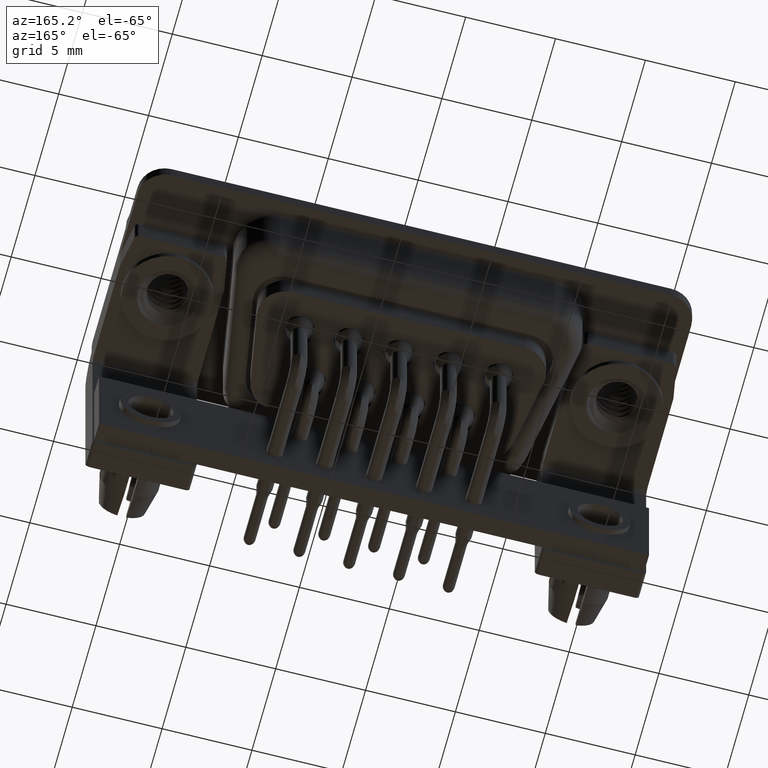
[diagram: clean part render]
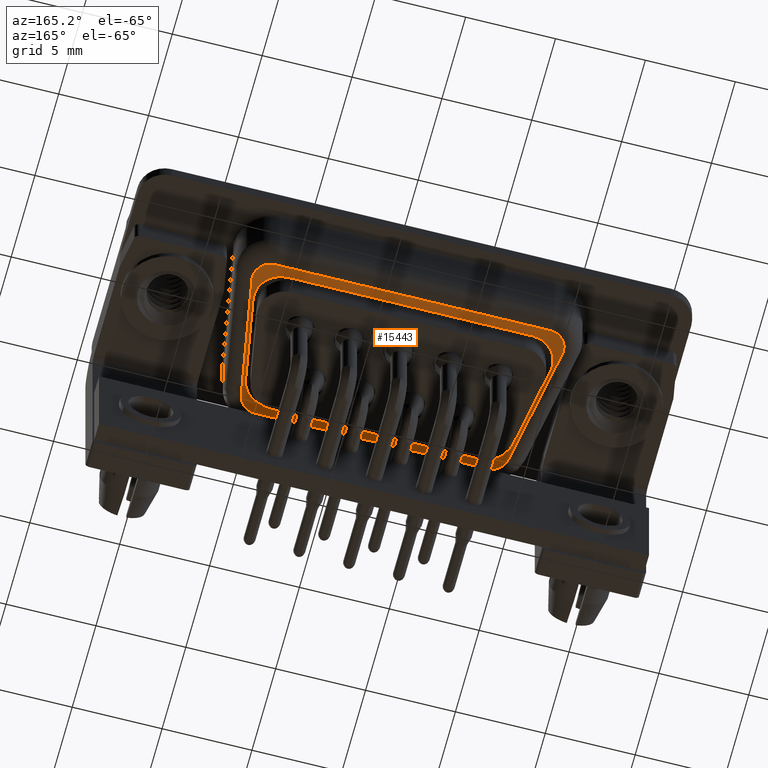
[diagram: same view with one face highlighted and labeled with its STEP entity id]
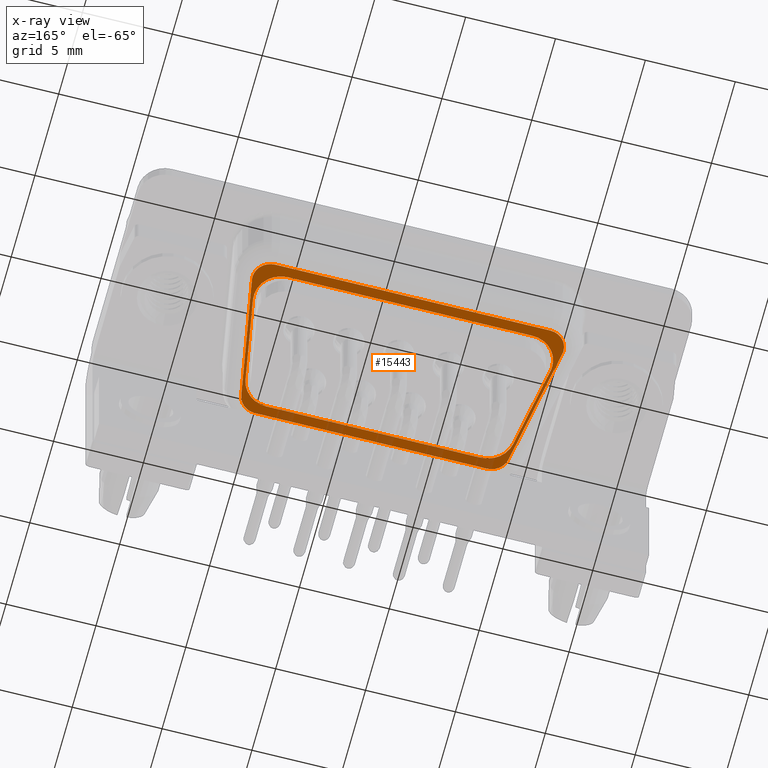
[diagram: x-ray of the same camera — body ghosted, the highlighted face saturated]
A machine part, auxiliary view. The second image highlights one B-rep face of the part: STEP entity #15443.
The next image is the same camera in x-ray: the body ghosted, the highlighted face saturated — about 12% of this face is hidden behind the body in this view.
In plain terms, the highlighted planar face has unit normal (0, 0, 1).
Its self-contained STEP definition (entity closure, byte-faithful):
#224 = DIRECTION ( 'NONE',  ( -0.1736481776669234800, -0.9848077530122092400, -0.0000000000000000000 ) ) ;
#400 = ORIENTED_EDGE ( 'NONE', *, *, #4930, .T. ) ;
#479 = CARTESIAN_POINT ( 'NONE',  ( 4.850000000000000500, 3.400000000000003900, -4.500000000000000000 ) ) ;
#648 = ORIENTED_EDGE ( 'NONE', *, *, #4408, .T. ) ;
#751 = CARTESIAN_POINT ( 'NONE',  ( 21.15000000000000200, 3.400000000000003900, -4.500000000000000000 ) ) ;
#967 = CIRCLE ( 'NONE', #8105, 1.499999999999997800 ) ;
#974 = AXIS2_PLACEMENT_3D ( 'NONE', #6288, #17212, #7868 ) ;
#1038 = EDGE_CURVE ( 'NONE', #10322, #13437, #8084, .T. ) ;
#1113 = DIRECTION ( 'NONE',  ( -0.1736481776669233600, 0.9848077530122092400, 0.0000000000000000000 ) ) ;
#1281 = VERTEX_POINT ( 'NONE', #5790 ) ;
#1309 = DIRECTION ( 'NONE',  ( 1.000000000000000000, 0.0000000000000000000, 0.0000000000000000000 ) ) ;
#1324 = CARTESIAN_POINT ( 'NONE',  ( 21.13480775301221100, 3.226351822333079200, -4.500000000000000000 ) ) ;
#1588 = CIRCLE ( 'NONE', #9521, 1.000000000000000000 ) ;
#1824 = CIRCLE ( 'NONE', #9130, 1.500000000000000400 ) ;
#1935 = ORIENTED_EDGE ( 'NONE', *, *, #15951, .F. ) ;
#2051 = DIRECTION ( 'NONE',  ( 1.000000000000000000, 7.806255641895631900E-015, 0.0000000000000000000 ) ) ;
#2210 = VERTEX_POINT ( 'NONE', #9620 ) ;
#2278 = CARTESIAN_POINT ( 'NONE',  ( 5.051772940340480700, -2.610472266500377900, -4.500000000000000000 ) ) ;
#2571 = DIRECTION ( 'NONE',  ( 1.000000000000000000, 0.0000000000000000000, -0.0000000000000000000 ) ) ;
#2729 = LINE ( 'NONE', #6370, #18901 ) ;
#2955 = DIRECTION ( 'NONE',  ( -1.000000000000000000, 0.0000000000000000000, 0.0000000000000000000 ) ) ;
#3002 = VERTEX_POINT ( 'NONE', #2278 ) ;
#3310 = CARTESIAN_POINT ( 'NONE',  ( 18.95097653118248700, -4.400000000000000400, -4.500000000000000000 ) ) ;
#3511 = EDGE_CURVE ( 'NONE', #6336, #17828, #18013, .T. ) ;
#3562 = CIRCLE ( 'NONE', #5631, 1.500000000000000400 ) ;
#3913 = VECTOR ( 'NONE', #1113, 1000.000000000000100 ) ;
#3967 = CARTESIAN_POINT ( 'NONE',  ( 5.064215715805304700, -3.573648177666925100, -4.500000000000000000 ) ) ;
#4128 = CARTESIAN_POINT ( 'NONE',  ( 4.200247760529043400, 2.350000000000005400, -4.500000000000000000 ) ) ;
#4144 = ORIENTED_EDGE ( 'NONE', *, *, #15711, .T. ) ;
#4253 = VECTOR ( 'NONE', #13869, 1000.000000000000000 ) ;
#4408 = EDGE_CURVE ( 'NONE', #17828, #10482, #4777, .T. ) ;
#4690 = VERTEX_POINT ( 'NONE', #4856 ) ;
#4777 = CIRCLE ( 'NONE', #11364, 1.000000000000000900 ) ;
#4806 = CARTESIAN_POINT ( 'NONE',  ( 6.049023468817512800, -4.400000000000000400, -4.500000000000000000 ) ) ;
#4856 = CARTESIAN_POINT ( 'NONE',  ( 19.94822705965951900, -2.610472266500378300, -4.500000000000000000 ) ) ;
#4930 = EDGE_CURVE ( 'NONE', #7276, #18573, #1588, .T. ) ;
#5191 = EDGE_CURVE ( 'NONE', #13892, #2210, #1824, .T. ) ;
#5246 = CARTESIAN_POINT ( 'NONE',  ( 5.700247760529043400, 2.350000000000005400, -4.500000000000000000 ) ) ;
#5390 = EDGE_LOOP ( 'NONE', ( #14139, #14577, #18595, #9207, #1935, #13510, #19132, #11421, #16426 ) ) ;
#5555 = DIRECTION ( 'NONE',  ( -0.0000000000000000000, 0.0000000000000000000, -1.000000000000000000 ) ) ;
#5603 = EDGE_CURVE ( 'NONE', #18573, #6336, #8413, .T. ) ;
#5625 = CARTESIAN_POINT ( 'NONE',  ( 20.15000000000000200, 3.400000000000003900, -4.500000000000000000 ) ) ;
#5631 = AXIS2_PLACEMENT_3D ( 'NONE', #20069, #10657, #1309 ) ;
#5790 = CARTESIAN_POINT ( 'NONE',  ( 18.47101543014119700, -3.850000000000001900, -4.500000000000000000 ) ) ;
#5803 = AXIS2_PLACEMENT_3D ( 'NONE', #479, #11413, #2051 ) ;
#5884 = CIRCLE ( 'NONE', #5803, 1.000000000000000000 ) ;
#5999 = CARTESIAN_POINT ( 'NONE',  ( 6.049023468817512800, 4.400000000000004800, -4.500000000000000000 ) ) ;
#6136 = CARTESIAN_POINT ( 'NONE',  ( 3.865192246987791100, 3.226351822333079600, -4.500000000000000000 ) ) ;
#6288 = CARTESIAN_POINT ( 'NONE',  ( 18.47101543014120400, -2.350000000000001900, -4.500000000000000000 ) ) ;
#6325 = CARTESIAN_POINT ( 'NONE',  ( 19.29975223947094800, 3.850000000000005400, -4.500000000000000000 ) ) ;
#6336 = VERTEX_POINT ( 'NONE', #17040 ) ;
#6340 = CIRCLE ( 'NONE', #11251, 1.000000000000000900 ) ;
#6370 = CARTESIAN_POINT ( 'NONE',  ( 19.94822705965951900, -2.610472266500378300, -4.500000000000000000 ) ) ;
#6832 = VERTEX_POINT ( 'NONE', #3310 ) ;
#6834 = DIRECTION ( 'NONE',  ( 1.000000000000000000, 0.0000000000000000000, 0.0000000000000000000 ) ) ;
#6925 = DIRECTION ( 'NONE',  ( 1.000000000000000000, 0.0000000000000000000, 0.0000000000000000000 ) ) ;
#7276 = VERTEX_POINT ( 'NONE', #10678 ) ;
#7280 = AXIS2_PLACEMENT_3D ( 'NONE', #5625, #5555, #6925 ) ;
#7310 = VERTEX_POINT ( 'NONE', #12319 ) ;
#7334 = CIRCLE ( 'NONE', #9917, 1.500000000000000400 ) ;
#7407 = CARTESIAN_POINT ( 'NONE',  ( 19.54674279622749800, -5.780012095452398100, -4.500000000000000000 ) ) ;
#7414 = VECTOR ( 'NONE', #11058, 1000.000000000000000 ) ;
#7417 = CARTESIAN_POINT ( 'NONE',  ( 6.049023468817512800, -3.400000000000001700, -4.500000000000000000 ) ) ;
#7458 = AXIS2_PLACEMENT_3D ( 'NONE', #10375, #11935, #2571 ) ;
#7797 = ORIENTED_EDGE ( 'NONE', *, *, #15820, .T. ) ;
#7868 = DIRECTION ( 'NONE',  ( 1.000000000000000000, 0.0000000000000000000, 0.0000000000000000000 ) ) ;
#8027 = ORIENTED_EDGE ( 'NONE', *, *, #3511, .T. ) ;
#8084 = LINE ( 'NONE', #3967, #3913 ) ;
#8105 = AXIS2_PLACEMENT_3D ( 'NONE', #17467, #8115, #19068 ) ;
#8115 = DIRECTION ( 'NONE',  ( 0.0000000000000000000, 0.0000000000000000000, -1.000000000000000000 ) ) ;
#8163 = CARTESIAN_POINT ( 'NONE',  ( 5.700247760529043400, 2.350000000000005400, -4.500000000000000000 ) ) ;
#8379 = CARTESIAN_POINT ( 'NONE',  ( 18.95097653118248700, -3.400000000000001700, -4.500000000000000000 ) ) ;
#8413 = LINE ( 'NONE', #5999, #4253 ) ;
#8708 = VECTOR ( 'NONE', #2955, 1000.000000000000000 ) ;
#8712 = CARTESIAN_POINT ( 'NONE',  ( 4.850000000000000500, 4.400000000000004800, -4.500000000000000000 ) ) ;
#8770 = CARTESIAN_POINT ( 'NONE',  ( 5.064215715805304700, -3.573648177666925600, -4.500000000000000000 ) ) ;
#8809 = EDGE_LOOP ( 'NONE', ( #12708, #18568, #400, #11799, #8027, #648, #4144, #19767, #7797, #11061 ) ) ;
#8960 = DIRECTION ( 'NONE',  ( 1.000000000000000000, 0.0000000000000000000, 0.0000000000000000000 ) ) ;
#9069 = DIRECTION ( 'NONE',  ( -1.000000000000000000, -0.0000000000000000000, -0.0000000000000000000 ) ) ;
#9130 = AXIS2_PLACEMENT_3D ( 'NONE', #8163, #19127, #9711 ) ;
#9207 = ORIENTED_EDGE ( 'NONE', *, *, #16236, .F. ) ;
#9321 = VECTOR ( 'NONE', #9069, 1000.000000000000000 ) ;
#9521 = AXIS2_PLACEMENT_3D ( 'NONE', #12333, #11531, #13246 ) ;
#9620 = CARTESIAN_POINT ( 'NONE',  ( 5.700247760529056700, 3.850000000000005000, -4.500000000000000000 ) ) ;
#9711 = DIRECTION ( 'NONE',  ( 1.000000000000000000, 0.0000000000000000000, 0.0000000000000000000 ) ) ;
#9762 = CARTESIAN_POINT ( 'NONE',  ( 4.223036131010732500, 2.089527733499607200, -4.500000000000000000 ) ) ;
#9814 = LINE ( 'NONE', #18451, #9321 ) ;
#9917 = AXIS2_PLACEMENT_3D ( 'NONE', #5246, #16189, #6834 ) ;
#9937 = DIRECTION ( 'NONE',  ( 1.000000000000000000, 0.0000000000000000000, 0.0000000000000000000 ) ) ;
#9939 = FACE_BOUND ( 'NONE', #5390, .T. ) ;
#9946 = EDGE_CURVE ( 'NONE', #2210, #10821, #15738, .T. ) ;
#10322 = VERTEX_POINT ( 'NONE', #8770 ) ;
#10375 = CARTESIAN_POINT ( 'NONE',  ( 6.049023468817512800, -3.400000000000001700, -4.500000000000000000 ) ) ;
#10482 = VERTEX_POINT ( 'NONE', #1324 ) ;
#10657 = DIRECTION ( 'NONE',  ( -0.0000000000000000000, 0.0000000000000000000, -1.000000000000000000 ) ) ;
#10678 = CARTESIAN_POINT ( 'NONE',  ( 3.850000000000000100, 3.400000000000003900, -4.500000000000000000 ) ) ;
#10821 = VERTEX_POINT ( 'NONE', #13064 ) ;
#10931 = FACE_OUTER_BOUND ( 'NONE', #8809, .T. ) ;
#11058 = DIRECTION ( 'NONE',  ( 1.000000000000000000, -0.0000000000000000000, -0.0000000000000000000 ) ) ;
#11061 = ORIENTED_EDGE ( 'NONE', *, *, #16834, .T. ) ;
#11251 = AXIS2_PLACEMENT_3D ( 'NONE', #8379, #19336, #9937 ) ;
#11364 = AXIS2_PLACEMENT_3D ( 'NONE', #14483, #13970, #14438 ) ;
#11413 = DIRECTION ( 'NONE',  ( -0.0000000000000000000, 0.0000000000000000000, -1.000000000000000000 ) ) ;
#11421 = ORIENTED_EDGE ( 'NONE', *, *, #17652, .F. ) ;
#11529 = AXIS2_PLACEMENT_3D ( 'NONE', #7417, #18358, #8960 ) ;
#11531 = DIRECTION ( 'NONE',  ( -0.0000000000000000000, 0.0000000000000000000, -1.000000000000000000 ) ) ;
#11799 = ORIENTED_EDGE ( 'NONE', *, *, #5603, .T. ) ;
#11935 = DIRECTION ( 'NONE',  ( 0.0000000000000000000, -0.0000000000000000000, 1.000000000000000000 ) ) ;
#12225 = CARTESIAN_POINT ( 'NONE',  ( 20.77696386898927000, 2.089527733499609000, -4.500000000000000000 ) ) ;
#12319 = CARTESIAN_POINT ( 'NONE',  ( 19.93578428419469600, -3.573648177666925100, -4.500000000000000000 ) ) ;
#12333 = CARTESIAN_POINT ( 'NONE',  ( 4.850000000000000500, 3.400000000000003900, -4.500000000000000000 ) ) ;
#12692 = CARTESIAN_POINT ( 'NONE',  ( 4.223036131010732500, 2.089527733499607200, -4.500000000000000000 ) ) ;
#12708 = ORIENTED_EDGE ( 'NONE', *, *, #1038, .T. ) ;
#12788 = VERTEX_POINT ( 'NONE', #12225 ) ;
#12882 = LINE ( 'NONE', #13894, #8708 ) ;
#12923 = DIRECTION ( 'NONE',  ( -0.1736481776669233100, 0.9848077530122092400, -0.0000000000000000000 ) ) ;
#13064 = CARTESIAN_POINT ( 'NONE',  ( 19.29975223947094800, 3.850000000000005400, -4.500000000000000000 ) ) ;
#13098 = EDGE_CURVE ( 'NONE', #13570, #13892, #7334, .T. ) ;
#13246 = DIRECTION ( 'NONE',  ( 1.000000000000000000, 0.0000000000000000000, 0.0000000000000000000 ) ) ;
#13437 = VERTEX_POINT ( 'NONE', #6136 ) ;
#13510 = ORIENTED_EDGE ( 'NONE', *, *, #18033, .F. ) ;
#13570 = VERTEX_POINT ( 'NONE', #12692 ) ;
#13602 = EDGE_CURVE ( 'NONE', #10821, #12788, #967, .T. ) ;
#13731 = EDGE_CURVE ( 'NONE', #7310, #6832, #6340, .T. ) ;
#13869 = DIRECTION ( 'NONE',  ( 1.000000000000000000, 0.0000000000000000000, 0.0000000000000000000 ) ) ;
#13892 = VERTEX_POINT ( 'NONE', #4128 ) ;
#13894 = CARTESIAN_POINT ( 'NONE',  ( 6.049023468817512800, -4.400000000000000400, -4.500000000000000000 ) ) ;
#13970 = DIRECTION ( 'NONE',  ( -0.0000000000000000000, 0.0000000000000000000, -1.000000000000000000 ) ) ;
#14139 = ORIENTED_EDGE ( 'NONE', *, *, #9946, .F. ) ;
#14438 = DIRECTION ( 'NONE',  ( 1.000000000000000000, 0.0000000000000000000, 0.0000000000000000000 ) ) ;
#14483 = CARTESIAN_POINT ( 'NONE',  ( 20.15000000000000200, 3.400000000000003900, -4.500000000000000000 ) ) ;
#14514 = VECTOR ( 'NONE', #12923, 1000.000000000000200 ) ;
#14517 = VERTEX_POINT ( 'NONE', #4806 ) ;
#14577 = ORIENTED_EDGE ( 'NONE', *, *, #5191, .F. ) ;
#14818 = LINE ( 'NONE', #7407, #19500 ) ;
#15443 = ADVANCED_FACE ( 'NONE', ( #9939, #10931 ), #19766, .F. ) ;
#15711 = EDGE_CURVE ( 'NONE', #10482, #7310, #14818, .T. ) ;
#15738 = LINE ( 'NONE', #6325, #7414 ) ;
#15811 = CARTESIAN_POINT ( 'NONE',  ( 6.528984569858804900, -3.850000000000001900, -4.500000000000000000 ) ) ;
#15820 = EDGE_CURVE ( 'NONE', #6832, #14517, #12882, .T. ) ;
#15951 = EDGE_CURVE ( 'NONE', #18905, #3002, #3562, .T. ) ;
#16189 = DIRECTION ( 'NONE',  ( -0.0000000000000000000, 0.0000000000000000000, -1.000000000000000000 ) ) ;
#16236 = EDGE_CURVE ( 'NONE', #3002, #13570, #19207, .T. ) ;
#16426 = ORIENTED_EDGE ( 'NONE', *, *, #13602, .F. ) ;
#16742 = DIRECTION ( 'NONE',  ( -0.1736481776669233600, -0.9848077530122092400, 0.0000000000000000000 ) ) ;
#16834 = EDGE_CURVE ( 'NONE', #14517, #10322, #17685, .T. ) ;
#17040 = CARTESIAN_POINT ( 'NONE',  ( 20.15000000000000200, 4.400000000000004800, -4.500000000000000000 ) ) ;
#17212 = DIRECTION ( 'NONE',  ( -0.0000000000000000000, 0.0000000000000000000, -1.000000000000000000 ) ) ;
#17467 = CARTESIAN_POINT ( 'NONE',  ( 19.29975223947095800, 2.350000000000005900, -4.500000000000000000 ) ) ;
#17652 = EDGE_CURVE ( 'NONE', #12788, #4690, #2729, .T. ) ;
#17685 = CIRCLE ( 'NONE', #11529, 0.9999999999999991100 ) ;
#17828 = VERTEX_POINT ( 'NONE', #751 ) ;
#18013 = CIRCLE ( 'NONE', #7280, 1.000000000000000900 ) ;
#18033 = EDGE_CURVE ( 'NONE', #1281, #18905, #9814, .T. ) ;
#18358 = DIRECTION ( 'NONE',  ( -0.0000000000000000000, 0.0000000000000000000, -1.000000000000000000 ) ) ;
#18451 = CARTESIAN_POINT ( 'NONE',  ( 6.528984569858804900, -3.850000000000001900, -4.500000000000000000 ) ) ;
#18568 = ORIENTED_EDGE ( 'NONE', *, *, #19262, .T. ) ;
#18573 = VERTEX_POINT ( 'NONE', #8712 ) ;
#18595 = ORIENTED_EDGE ( 'NONE', *, *, #13098, .F. ) ;
#18901 = VECTOR ( 'NONE', #224, 1000.000000000000100 ) ;
#18905 = VERTEX_POINT ( 'NONE', #15811 ) ;
#19068 = DIRECTION ( 'NONE',  ( -1.000000000000000000, 0.0000000000000000000, 0.0000000000000000000 ) ) ;
#19124 = EDGE_CURVE ( 'NONE', #4690, #1281, #20093, .T. ) ;
#19127 = DIRECTION ( 'NONE',  ( -0.0000000000000000000, 0.0000000000000000000, -1.000000000000000000 ) ) ;
#19132 = ORIENTED_EDGE ( 'NONE', *, *, #19124, .F. ) ;
#19207 = LINE ( 'NONE', #9762, #14514 ) ;
#19262 = EDGE_CURVE ( 'NONE', #13437, #7276, #5884, .T. ) ;
#19336 = DIRECTION ( 'NONE',  ( -0.0000000000000000000, 0.0000000000000000000, -1.000000000000000000 ) ) ;
#19500 = VECTOR ( 'NONE', #16742, 1000.000000000000100 ) ;
#19766 = PLANE ( 'NONE',  #7458 ) ;
#19767 = ORIENTED_EDGE ( 'NONE', *, *, #13731, .T. ) ;
#20069 = CARTESIAN_POINT ( 'NONE',  ( 6.528984569858796000, -2.350000000000001900, -4.500000000000000000 ) ) ;
#20093 = CIRCLE ( 'NONE', #974, 1.500000000000001300 ) ;